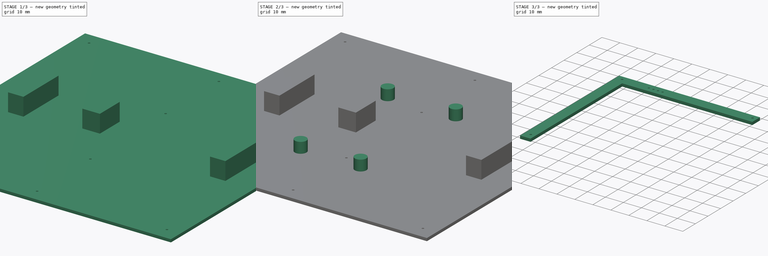
[diagram: build sequence overview — one tinted view per stage of 3, left to right]
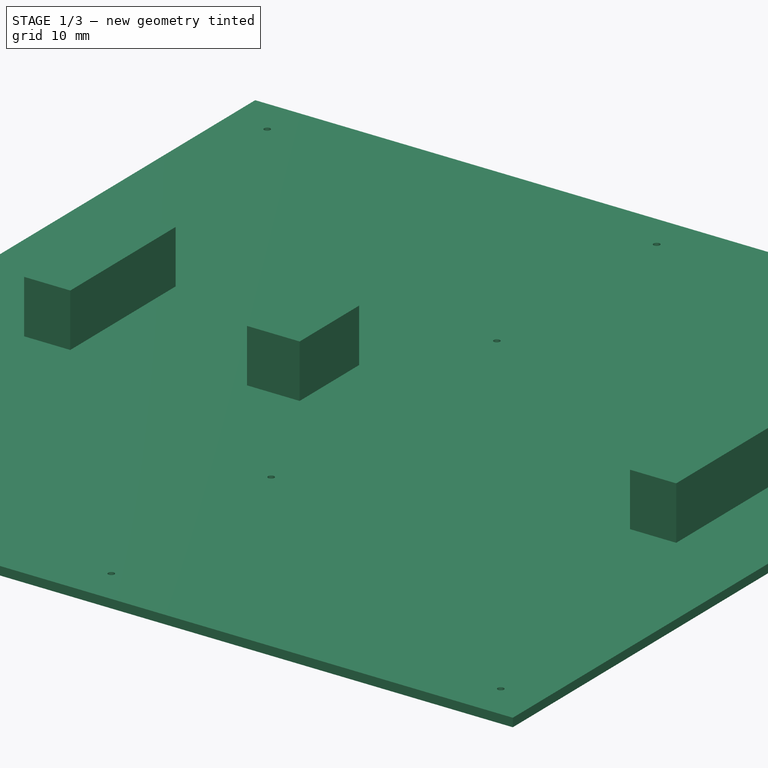
[diagram: stage 1 of 3 — iso view after this stage's code; geometry added in this stage tinted green]
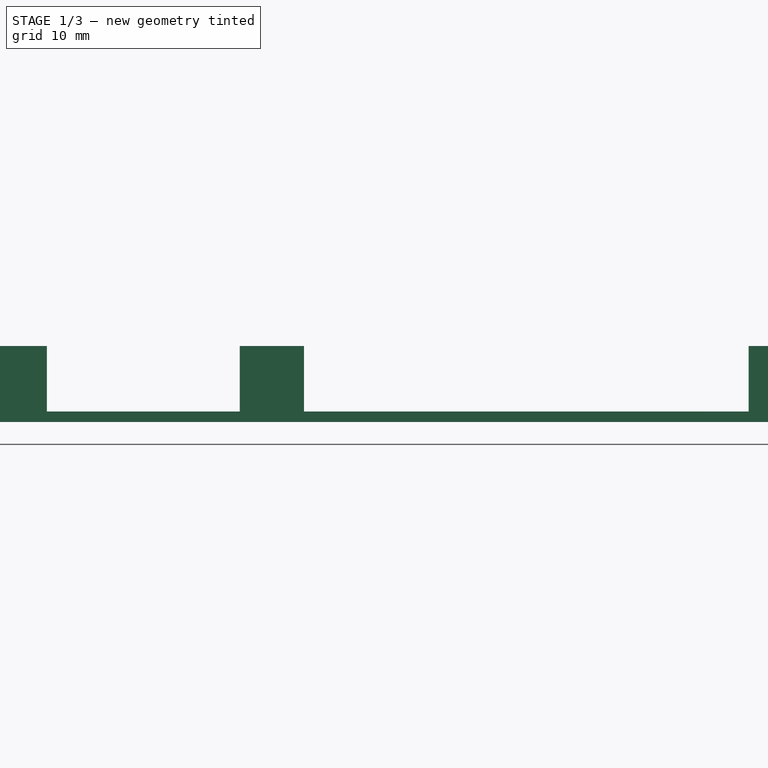
[diagram: stage 1 of 3 — front view after this stage's code; geometry added in this stage tinted green]
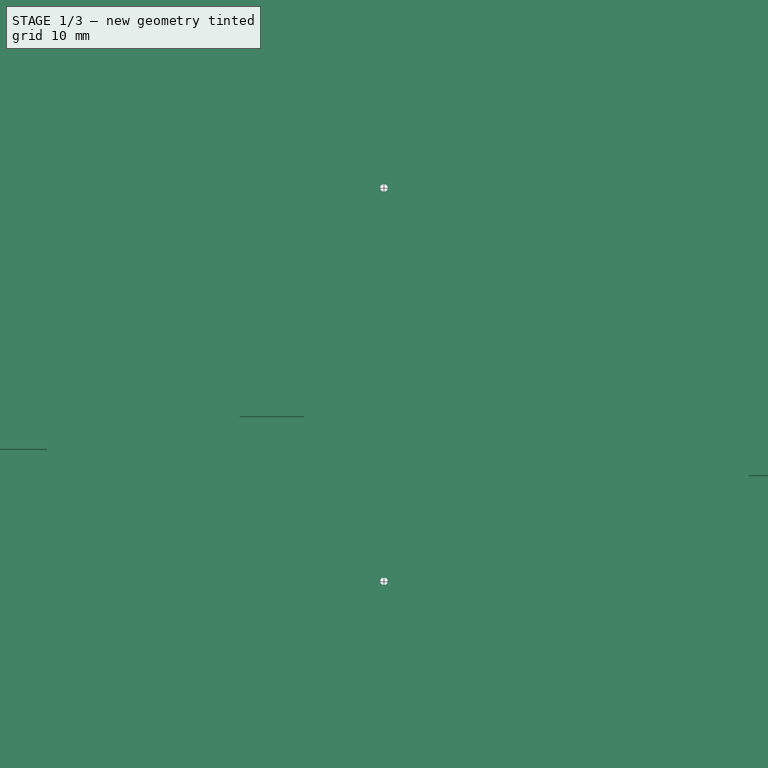
[diagram: stage 1 of 3 — top view after this stage's code; geometry added in this stage tinted green]
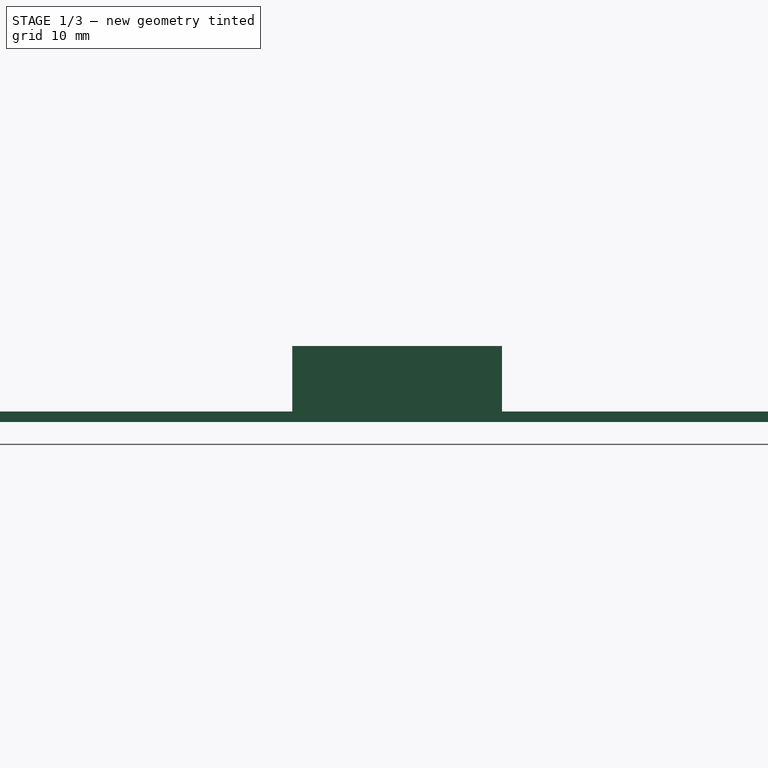
[diagram: stage 1 of 3 — right view after this stage's code; geometry added in this stage tinted green]
FCSTD DOCUMENT  (FreeCAD 0.21R33675 (Git))
Label: frame
License: All rights reserved
LicenseURL: https://en.wikipedia.org/wiki/All_rights_reserved
objects: Sketcher::SketchObject×5, PartDesign::Pad×5, PartDesign::LinearPattern×2, PartDesign::Body×2, PartDesign::Plane×1, PartDesign::MultiTransform×1, PartDesign::ShapeBinder×1
note: 22 computed .brp shape members not serialized (recipe doc carries the construction recipe); baked Part::Feature solids carry a one-line shape summary decoded from their .brp

FEATURE [Sketcher::SketchObject] Sketch  label="outline_drillholes"
  FullyConstrained = true
  MapMode = 2
  Support = -> [Sketch]
  sketch-geometry (14):
    g0: LineSegment StartX=-80 StartY=80 StartZ=0 EndX=80 EndY=80 EndZ=0
    g1: LineSegment StartX=80 StartY=80 StartZ=0 EndX=80 EndY=-80 EndZ=0
    g2: LineSegment StartX=80 StartY=-80 StartZ=0 EndX=-80 EndY=-80 EndZ=0
    g3: LineSegment StartX=-80 StartY=-80 StartZ=0 EndX=-80 EndY=80 EndZ=0
    g4: Circle CenterX=-72.5 CenterY=72.5 CenterZ=0 NormalX=0 NormalY=0 NormalZ=1 AngleXU=0 Radius=0.575
    g5: Circle CenterX=0 CenterY=72.5 CenterZ=0 NormalX=0 NormalY=0 NormalZ=1 AngleXU=0 Radius=0.575
    g6: Circle CenterX=72.5 CenterY=72.5 CenterZ=0 NormalX=0 NormalY=0 NormalZ=1 AngleXU=0 Radius=0.575
    g7: Circle CenterX=72.5 CenterY=0 CenterZ=0 NormalX=0 NormalY=0 NormalZ=1 AngleXU=0 Radius=0.575
    g8: Circle CenterX=72.5 CenterY=-72.5 CenterZ=0 NormalX=0 NormalY=0 NormalZ=1 AngleXU=0 Radius=0.575
    g9: Circle CenterX=0 CenterY=-72.5 CenterZ=0 NormalX=0 NormalY=0 NormalZ=1 AngleXU=0 Radius=0.575
    g10: Circle CenterX=-72.5 CenterY=-72.5 CenterZ=0 NormalX=0 NormalY=0 NormalZ=1 AngleXU=0 Radius=0.575
    g11: Circle CenterX=-72.5 CenterY=0 CenterZ=0 NormalX=0 NormalY=0 NormalZ=1 AngleXU=0 Radius=0.575
    g12: Circle CenterX=0 CenterY=30 CenterZ=0 NormalX=0 NormalY=0 NormalZ=1 AngleXU=0 Radius=0.575
    g13: Circle CenterX=0 CenterY=-30 CenterZ=0 NormalX=0 NormalY=0 NormalZ=1 AngleXU=0 Radius=0.575
  constraints (36):
    c: Coincident(g0,g1)
    c: Coincident(g1,g2)
    c: Coincident(g2,g3)
    c: Coincident(g3,g0)
    c: Horizontal(g0)
    c: Horizontal(g2)
    c: Vertical(g1)
    c: Vertical(g3)
    c: Symmetric(g0,g1,g-1)
    c: Equal(g0,g1)
    c: DistanceX(g0,g0) = 160
    c: Diameter(g4) = 1.15
    c: DistanceY(g4,g0) = 7.5
    c: DistanceX(g0,g4) = 7.5
    c: PointOnObject(g5,g-2)
    c: PointOnObject(g7,g-1)
    c: PointOnObject(g9,g-2)
    c: Equal(g4,g5)
    c: Equal(g5,g6)
    c: Equal(g6,g7)
    c: Equal(g7,g8)
    c: Equal(g8,g9)
    c: Equal(g9,g10)
    c: Equal(g10,g11)
    c: Symmetric(g4,g8,g-1)
    c: Symmetric(g4,g10,g-1)
    c: Symmetric(g6,g10,g-1)
    c: Symmetric(g11,g7,g-2)
    c: Vertical(g11,g4)
    c: PointOnObject(g12,g-2)
    c: DistanceY(g12,g5) = 42.5
    c: Symmetric(g12,g13,g-1)
    c: Equal(g12,g13)
    c: Equal(g13,g6)
    c: Horizontal(g4,g5)
    c: Horizontal(g9,g10)
FEATURE [PartDesign::Pad] Pad
  Direction = (0,0,1)
  Length = 1.6
  Length2 = 10
  Profile = -> Sketch
  ReferenceAxis = -> Sketch [N_Axis]
  Reversed = true
  Type = 0
FEATURE [Sketcher::SketchObject] Sketch001  label="connectors"
  ExternalGeometry = -> [Pad]
  FullyConstrained = false
  MapMode = 5
  Support = -> [XY_Plane]
  sketch-geometry (12):
    g0: LineSegment StartX=55.6 StartY=14 StartZ=0 EndX=64.2 EndY=14 EndZ=0
    g1: LineSegment StartX=64.2 StartY=14 StartZ=0 EndX=64.2 EndY=-14 EndZ=0
    g2: LineSegment StartX=64.2 StartY=-14 StartZ=0 EndX=55.6 EndY=-14 EndZ=0
    g3: LineSegment StartX=55.6 StartY=-14 StartZ=0 EndX=55.6 EndY=14 EndZ=0
    g4: LineSegment StartX=-60 StartY=18 StartZ=0 EndX=-51.4 EndY=18 EndZ=0
    g5: LineSegment StartX=-51.4 StartY=18 StartZ=0 EndX=-51.4 EndY=-10 EndZ=0
    g6: LineSegment StartX=-51.4 StartY=-10 StartZ=0 EndX=-60 EndY=-10 EndZ=0
    g7: LineSegment StartX=-60 StartY=-10 StartZ=0 EndX=-60 EndY=18 EndZ=0
    g8: LineSegment StartX=-22 StartY=10.8 StartZ=0 EndX=-12.2 EndY=10.8 EndZ=0
    g9: LineSegment StartX=-12.2 StartY=10.8 StartZ=0 EndX=-12.2 EndY=-5 EndZ=0
    g10: LineSegment StartX=-12.2 StartY=-5 StartZ=0 EndX=-22 EndY=-5 EndZ=0
    g11: LineSegment StartX=-22 StartY=-5 StartZ=0 EndX=-22 EndY=10.8 EndZ=0
  constraints (34):
    c: Coincident(g0,g1)
    c: Coincident(g1,g2)
    c: Coincident(g2,g3)
    c: Coincident(g3,g0)
    c: Horizontal(g0)
    c: Horizontal(g2)
    c: Vertical(g1)
    c: DistanceY(g1,g1) = 28
    c: DistanceX(g0,g0) = 8.6
    c: Distance(g0,g-3) = 15.8
    c: Coincident(g4,g5)
    c: Coincident(g5,g6)
    c: Coincident(g6,g7)
    c: Coincident(g7,g4)
    c: Horizontal(g4)
    c: Horizontal(g6)
    c: Vertical(g5)
    c: Equal(g5,g1)
    c: Equal(g4,g0)
    c: Distance(g4,g-4) = 20
    c: DistanceY(g-4,g6) = 70
    c: DistanceY(g-3,g1) = 66
    c: Coincident(g8,g9)
    c: Coincident(g9,g10)
    c: Coincident(g10,g11)
    c: Coincident(g11,g8)
    c: Horizontal(g8)
    c: Horizontal(g10)
    c: Vertical(g9)
    c: Vertical(g11)
    c: DistanceY(g9,g9) = 15.8
    c: DistanceX(g8,g8) = 9.8
    c: DistanceY(g-4,g10) = 75
    c: DistanceX(g-4,g8) = 58
FEATURE [PartDesign::Plane] DatumPlane
  Length = 178.658
  Placement = pos=(0,0,5) rot=(0,0,1;0rad)
  ResizeMode = 0
  Width = 177.845
FEATURE [PartDesign::Pad] Pad001
  BaseFeature = -> Pad
  Direction = (0,0,1)
  Length = 10
  Length2 = 10
  Profile = -> Sketch001
  ReferenceAxis = -> Sketch001 [N_Axis]
  Type = 0
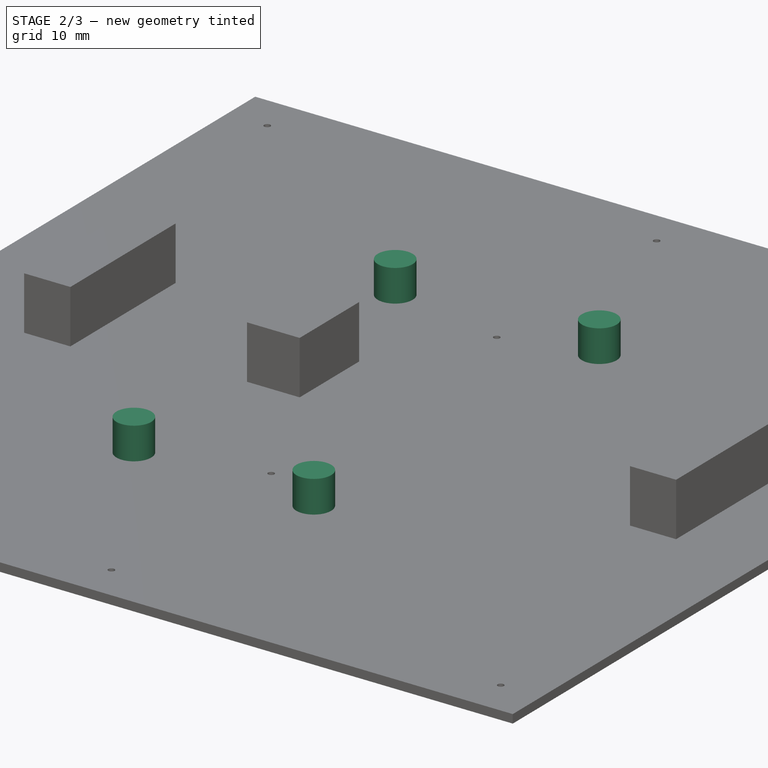
[diagram: stage 2 of 3 — iso view after this stage's code; geometry added in this stage tinted green]
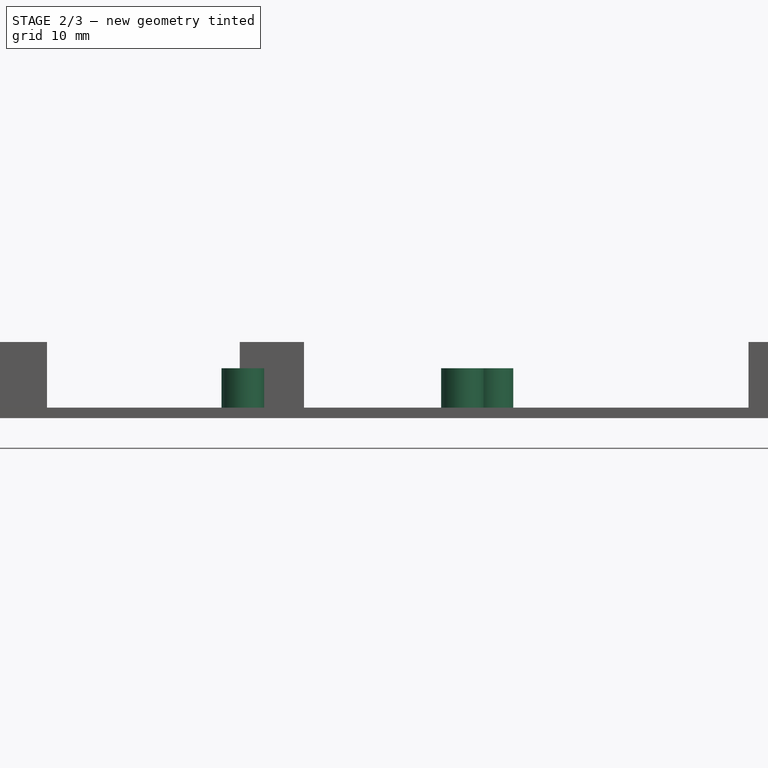
[diagram: stage 2 of 3 — front view after this stage's code; geometry added in this stage tinted green]
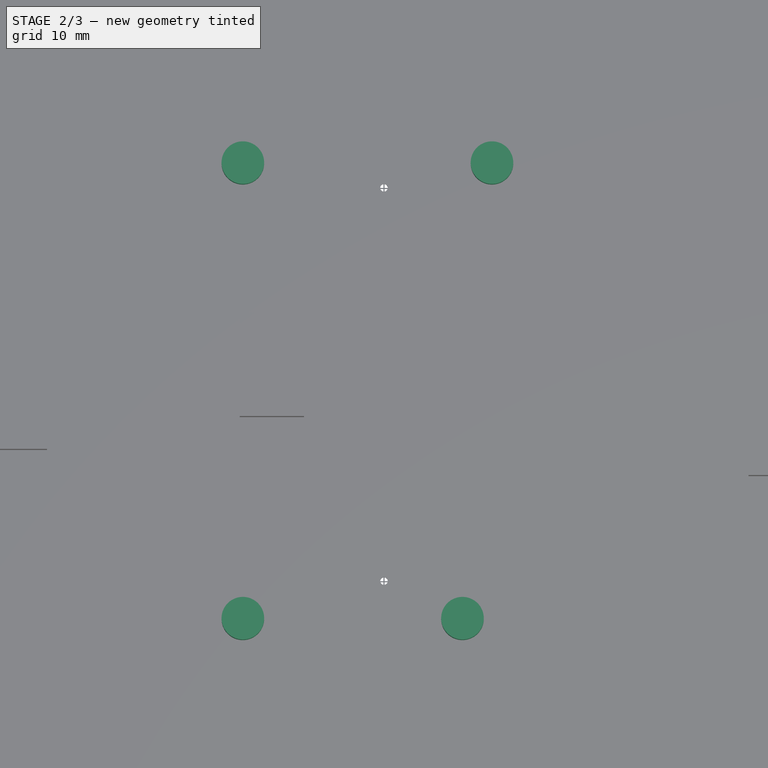
[diagram: stage 2 of 3 — top view after this stage's code; geometry added in this stage tinted green]
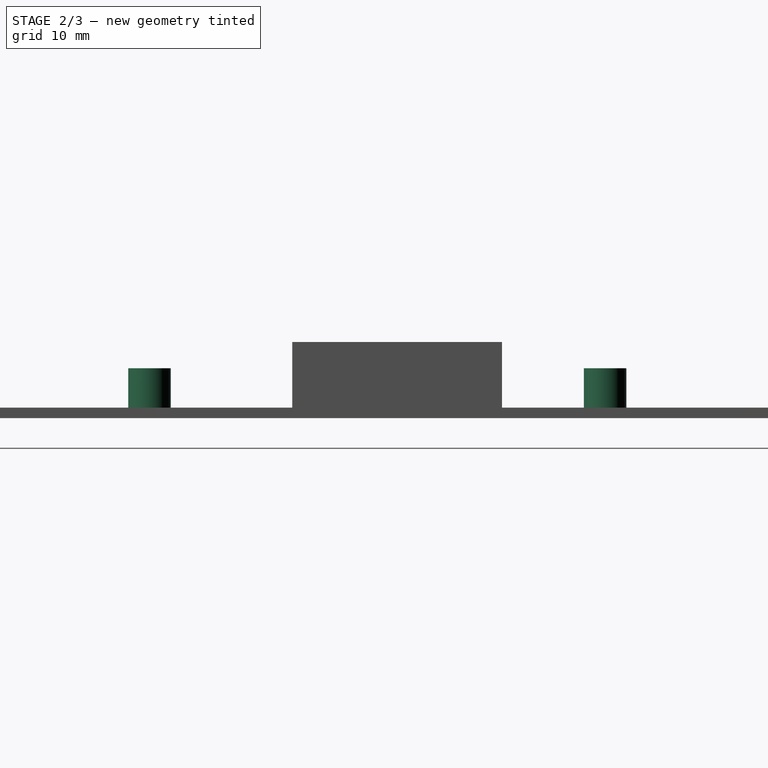
[diagram: stage 2 of 3 — right view after this stage's code; geometry added in this stage tinted green]
FEATURE [Sketcher::SketchObject] Sketch002  label="capacitors"
  ExternalGeometry = -> [Pad001]
  FullyConstrained = false
  MapMode = 5
  Support = -> [Pad001]
  sketch-geometry (4):
    g0: Circle CenterX=16.4683 CenterY=33.731 CenterZ=0 NormalX=0 NormalY=0 NormalZ=1 AngleXU=0 Radius=3.25
    g1: Circle CenterX=-21.5317 CenterY=33.731 CenterZ=0 NormalX=0 NormalY=0 NormalZ=1 AngleXU=0 Radius=3.25
    g2: Circle CenterX=-21.5317 CenterY=-35.7685 CenterZ=0 NormalX=0 NormalY=0 NormalZ=1 AngleXU=0 Radius=3.25
    g3: Circle CenterX=11.9683 CenterY=-35.7685 CenterZ=0 NormalX=0 NormalY=0 NormalZ=1 AngleXU=0 Radius=3.25
  constraints (9):
    c: Equal(g0,g1)
    c: Equal(g1,g2)
    c: Equal(g2,g3)
    c: Diameter(g0) = 6.5
    c: Horizontal(g1,g0)
    c: Horizontal(g2,g3)
    c: DistanceX(g1,g0) = 38
    c: DistanceX(g2,g3) = 33.5
    c: Vertical(g1,g2)
FEATURE [PartDesign::Pad] Pad002
  BaseFeature = -> Pad001
  Direction = (0,0,1)
  Length = 6
  Length2 = 10
  Profile = -> Sketch002
  ReferenceAxis = -> Sketch002 [N_Axis]
  Type = 0
FEATURE [Sketcher::SketchObject] Sketch003  label="led"
  ExternalGeometry = -> [Pad002]
  FullyConstrained = true
  MapMode = 5
  Placement = pos=(0,0,-1.6) rot=(1,0,0;3.14159rad)
  Support = -> [Pad002]
  sketch-geometry (5):
    g0: LineSegment StartX=-79.7 StartY=79.7 StartZ=0 EndX=-77.8 EndY=79.7 EndZ=0
    g1: LineSegment StartX=-77.8 StartY=79.7 StartZ=0 EndX=-77.8 EndY=77.8 EndZ=0
    g2: LineSegment StartX=-77.8 StartY=77.8 StartZ=0 EndX=-79.7 EndY=77.8 EndZ=0
    g3: LineSegment StartX=-79.7 StartY=77.8 StartZ=0 EndX=-79.7 EndY=79.7 EndZ=0
    g4: GeomPoint X=-78.75 Y=78.75 Z=0
  constraints (13):
    c: Coincident(g0,g1)
    c: Coincident(g1,g2)
    c: Coincident(g2,g3)
    c: Coincident(g3,g0)
    c: Horizontal(g0)
    c: Horizontal(g2)
    c: Vertical(g1)
    c: Vertical(g3)
    c: DistanceX(g0,g0) = 1.9
    c: DistanceY(g3,g3) = 1.9
    c: Symmetric(g0,g1,g4)
    c: DistanceX(g-3,g0) = 0.3
    c: DistanceY(g0,g-3) = 0.3
FEATURE [PartDesign::LinearPattern] LinearPattern
  Direction = -> Sketch003 [H_Axis]
  Length = 157.5
  Occurrences = 8
FEATURE [PartDesign::LinearPattern] LinearPattern001
  Direction = -> Sketch003 [V_Axis]
  Length = 157.5
  Occurrences = 8
  Reversed = true
FEATURE [PartDesign::Pad] Pad003
  BaseFeature = -> Pad002
  Direction = (0,0,-1)
  Length = 1.2
  Length2 = 10
  Profile = -> Sketch003
  ReferenceAxis = -> Sketch003 [N_Axis]
  Type = 0
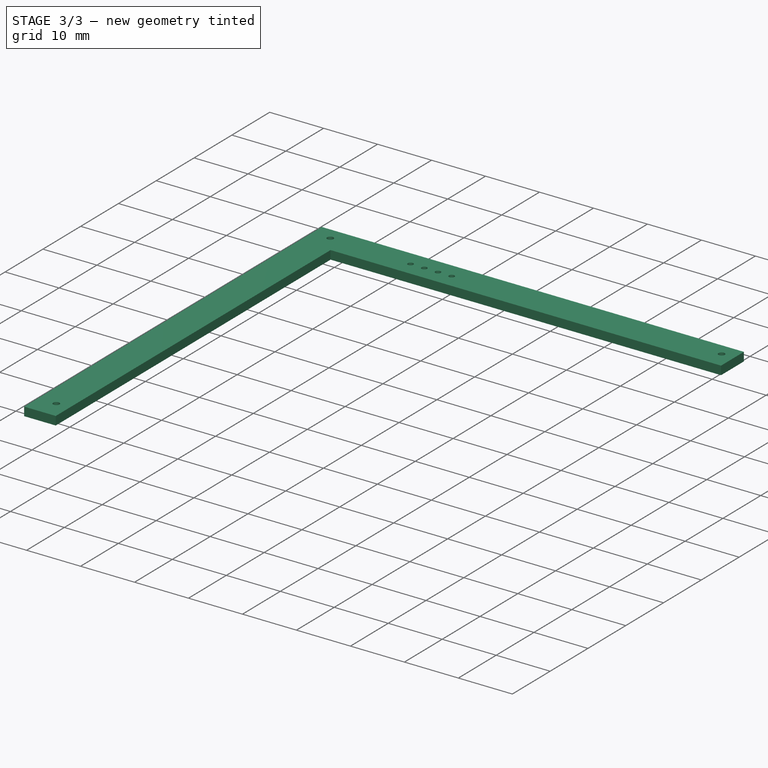
[diagram: stage 3 of 3 — iso view after this stage's code; geometry added in this stage tinted green]
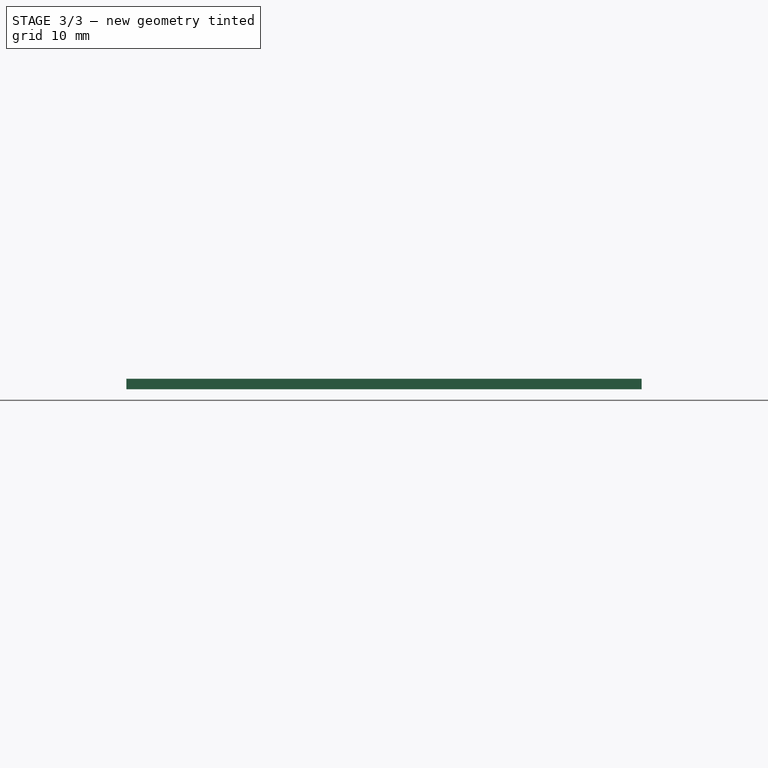
[diagram: stage 3 of 3 — front view after this stage's code; geometry added in this stage tinted green]
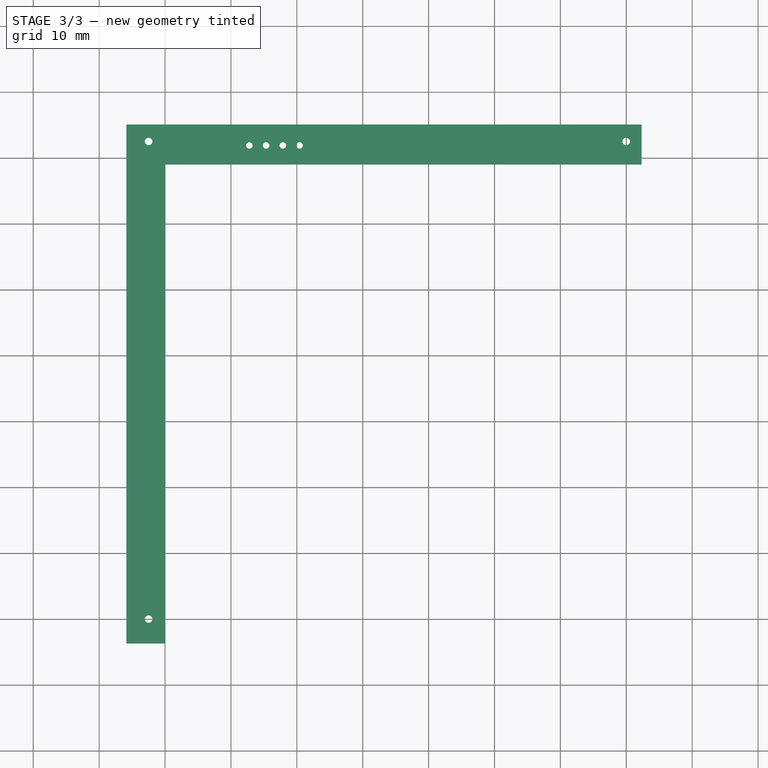
[diagram: stage 3 of 3 — top view after this stage's code; geometry added in this stage tinted green]
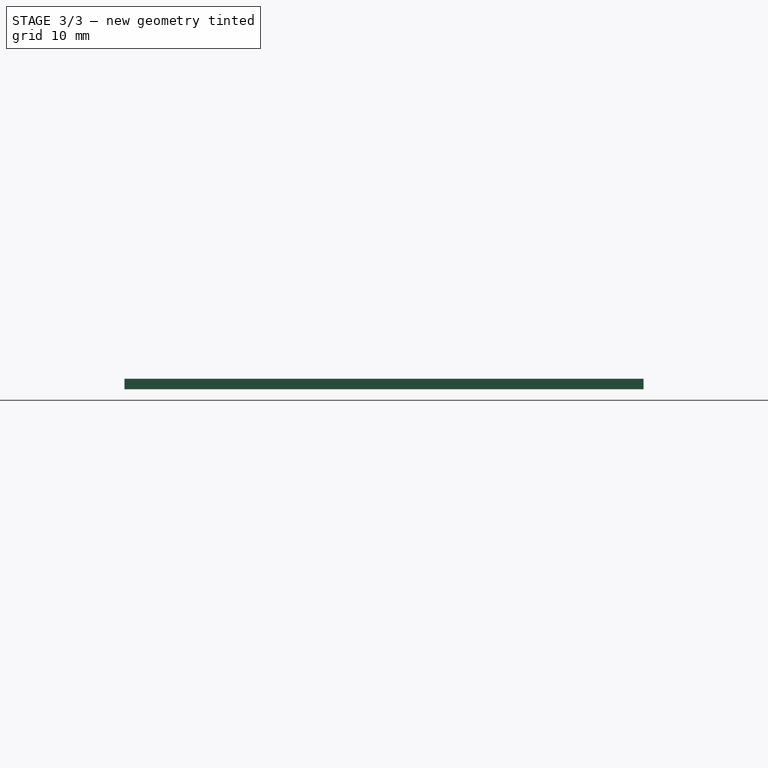
[diagram: stage 3 of 3 — right view after this stage's code; geometry added in this stage tinted green]
FEATURE [PartDesign::MultiTransform] MultiTransform
  BaseFeature = -> Pad003
  Originals = -> [Pad003]
  Transformations = -> [LinearPattern,LinearPattern001]
FEATURE [PartDesign::Body] Body  label="LED_panel"
  Group = -> [Sketch,Pad,Sketch001,Pad001,Sketch002,Pad002,Sketch003,Pad003,MultiTransform,LinearPattern,LinearPattern001]
  Origin = -> Origin
  Tip = -> MultiTransform
FEATURE [PartDesign::ShapeBinder] ShapeBinder
  Support = -> [MultiTransform]
  TraceSupport = false
FEATURE [Sketcher::SketchObject] Sketch004
  ExternalGeometry = -> [ShapeBinder]
  FullyConstrained = false
  MapMode = 5
  Placement = pos=(0,0,5) rot=(0,0,1;0rad)
  Support = -> [DatumPlane]
  sketch-geometry (13):
    g0: LineSegment StartX=-75.8749 StartY=75.066 StartZ=0 EndX=2.33304 EndY=75.066 EndZ=0
    g1: LineSegment StartX=2.33304 StartY=75.066 StartZ=0 EndX=2.33304 EndY=69.0214 EndZ=0
    g2: LineSegment StartX=2.33304 StartY=69.0214 StartZ=0 EndX=-70.0163 EndY=69.0214 EndZ=0
    g3: LineSegment StartX=-70.0163 StartY=69.0214 StartZ=0 EndX=-70.0163 EndY=-3.69988 EndZ=0
    g4: LineSegment StartX=-70.0163 StartY=-3.69988 StartZ=0 EndX=-75.8749 EndY=-3.69988 EndZ=0
    g5: LineSegment StartX=-75.8749 StartY=-3.69988 StartZ=0 EndX=-75.8749 EndY=75.066 EndZ=0
    g6: Circle CenterX=-57.2058 CenterY=71.8969 CenterZ=0 NormalX=0 NormalY=0 NormalZ=1 AngleXU=0 Radius=0.5
    g7: Circle CenterX=-54.6658 CenterY=71.8969 CenterZ=0 NormalX=0 NormalY=0 NormalZ=1 AngleXU=0 Radius=0.5
    g8: Circle CenterX=-52.1258 CenterY=71.8969 CenterZ=0 NormalX=0 NormalY=0 NormalZ=1 AngleXU=0 Radius=0.5
    g9: Circle CenterX=-49.5858 CenterY=71.8969 CenterZ=0 NormalX=0 NormalY=0 NormalZ=1 AngleXU=0 Radius=0.5
    g10: Circle CenterX=-72.5 CenterY=72.5 CenterZ=0 NormalX=0 NormalY=0 NormalZ=1 AngleXU=0 Radius=0.575
    g11: Circle CenterX=0 CenterY=72.5 CenterZ=0 NormalX=0 NormalY=0 NormalZ=1 AngleXU=0 Radius=0.575
    g12: Circle CenterX=-72.5 CenterY=0 CenterZ=0 NormalX=0 NormalY=0 NormalZ=1 AngleXU=0 Radius=0.575
  constraints (27):
    c: Horizontal(g0)
    c: Coincident(g0,g1)
    c: Vertical(g1)
    c: Coincident(g1,g2)
    c: Horizontal(g2)
    c: Coincident(g2,g3)
    c: Vertical(g3)
    c: Coincident(g3,g4)
    c: Horizontal(g4)
    c: Coincident(g4,g5)
    c: Coincident(g5,g0)
    c: Vertical(g5)
    c: Horizontal(g6,g7)
    c: Horizontal(g7,g8)
    c: Horizontal(g8,g9)
    c: Equal(g6,g7)
    c: Equal(g7,g8)
    c: Equal(g8,g9)
    c: Diameter(g6) = 1
    c: Coincident(g10,g-3)
    c: Tangent(g10,g-3)
    c: Coincident(g11,g-4)
    c: Tangent(g11,g-4)
    c: Coincident(g12,g-5)
    c: DistanceX(g6,g7) = 2.54
    c: DistanceX(g7,g8) = 2.54
    c: DistanceX(g8,g9) = 2.54
FEATURE [PartDesign::Pad] Pad004
  Direction = (0,0,1)
  Length = 1.6
  Length2 = 10
  Placement = pos=(0,0,5) rot=(0,0,1;0rad)
  Profile = -> Sketch004
  ReferenceAxis = -> Sketch004 [N_Axis]
  Type = 0
FEATURE [PartDesign::Body] Body001  label="PCB_with_screws"
  Group = -> [DatumPlane,ShapeBinder,Sketch004,Pad004]
  Origin = -> Origin001
  Tip = -> Pad004
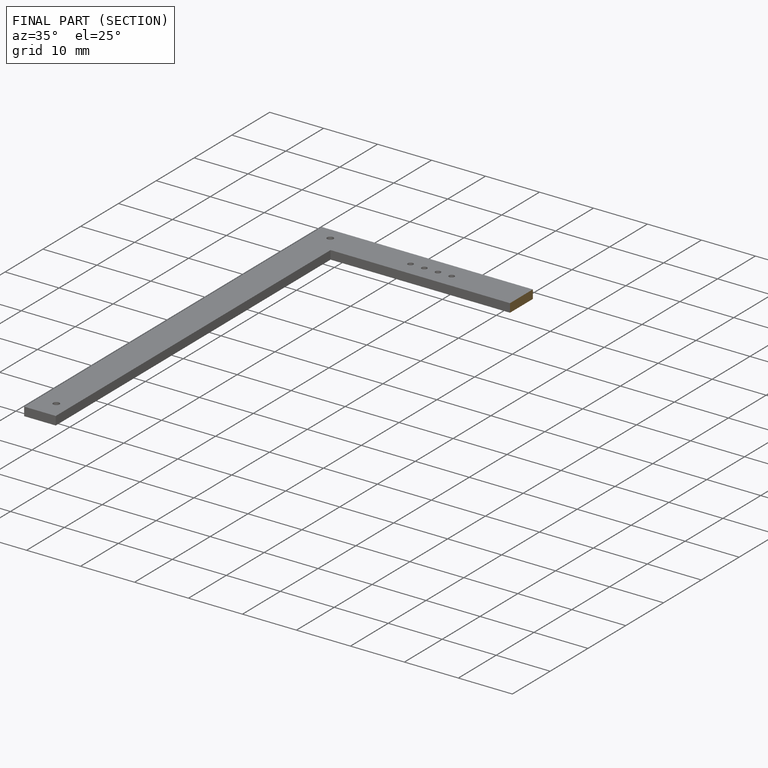
[diagram: finished part — half-section view (interior)]
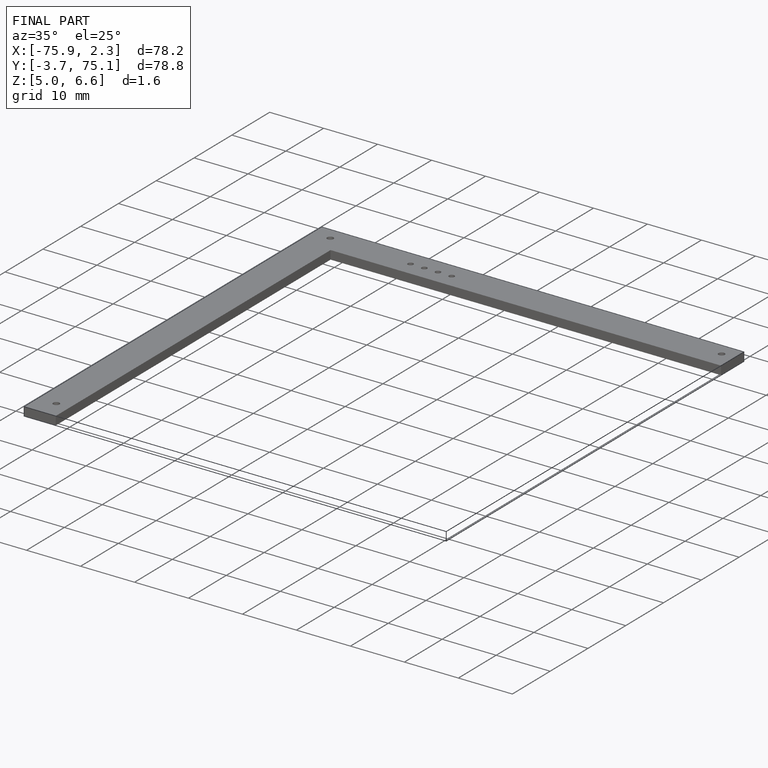
[diagram: finished part — iso view with bounding-box wireframe]
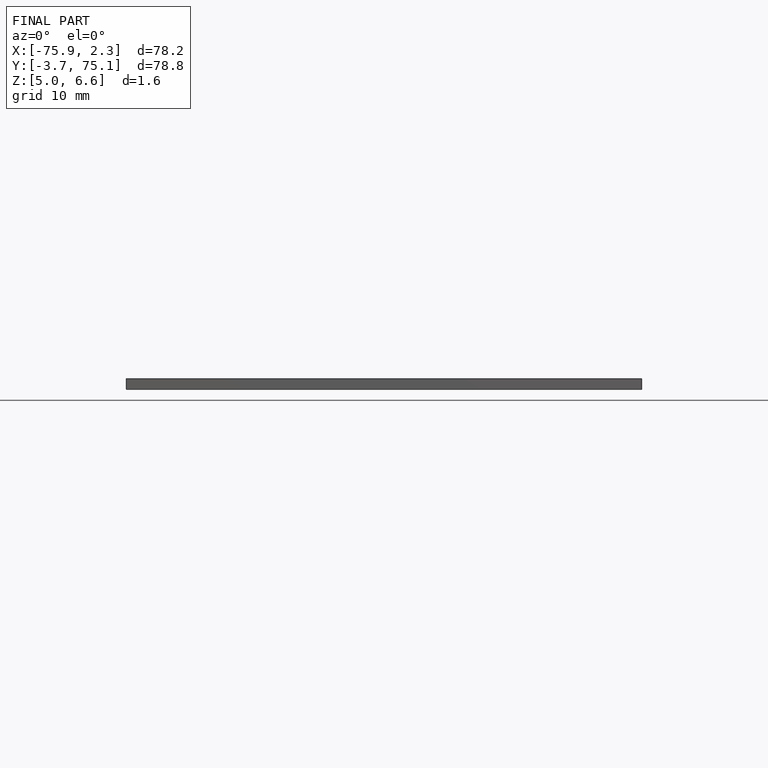
[diagram: finished part — front view with bounding-box wireframe]
